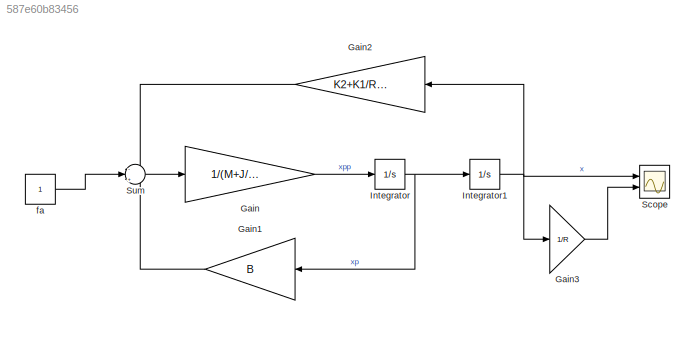
MODEL slx_587e60b83456
KIND model
BLOCK [Gain] Gain
  Gain = 1/(M+J/R^2)
  OutDataTypeStr = Inherit: Inherit via internal rule
  ParamDataTypeStr = Inherit: Inherit via internal rule
  SaturateOnIntegerOverflow = off
BLOCK [Gain] Gain1
  Gain = B
  OutDataTypeStr = Inherit: Inherit via internal rule
  ParamDataTypeStr = Inherit: Inherit via internal rule
  SaturateOnIntegerOverflow = off
BLOCK [Gain] Gain2
  Gain = K2+K1/R^2
  OutDataTypeStr = Inherit: Inherit via internal rule
  ParamDataTypeStr = Inherit: Inherit via internal rule
  SaturateOnIntegerOverflow = off
BLOCK [Gain] Gain3
  Gain = 1/R
  OutDataTypeStr = Inherit: Inherit via internal rule
  ParamDataTypeStr = Inherit: Inherit via internal rule
  SaturateOnIntegerOverflow = off
BLOCK [Integrator] Integrator
  Ports = [1, 1]
BLOCK [Integrator] Integrator1
  Ports = [1, 1]
BLOCK [Scope] Scope
  DataFormat = StructureWithTime
  Decimation = 1
  Floating = off
  Grid = on
  LimitDataPoints = off
  MaxDataPoints = 5000
  NumInputPorts = 2
  Ports = [2]
  SampleInput = off
  SampleTime = -1
  SaveName = ScopeData
  SaveToWorkspace = off
  ShowLegends = off
  TickLabels = OneTimeTick
  TimeRange = auto
  YMax = 10~5
  YMin = -10~-5
  ZoomMode = on
BLOCK [Sum] Sum
  IconShape = round
  InputSameDT = off
  Inputs = -|+-
  OutDataTypeStr = Inherit: Inherit via internal rule
  Ports = [3, 1]
  SaturateOnIntegerOverflow = off
BLOCK [Constant] fa
LINE Gain1:1 -> Sum:3
LINE Gain2:1 -> Sum:1
LINE Gain3:1 -> Scope:2
LINE Gain:1 -> Integrator:1
NET Integrator1:1 -> Gain2:1, Gain3:1, Scope:1
NET Integrator:1 -> Gain1:1, Integrator1:1
LINE Sum:1 -> Gain:1
LINE fa:1 -> Sum:2
note: NET lines group one-source signal fan-out (src -> all destinations, sorted); 1:1 wires keep LINE
